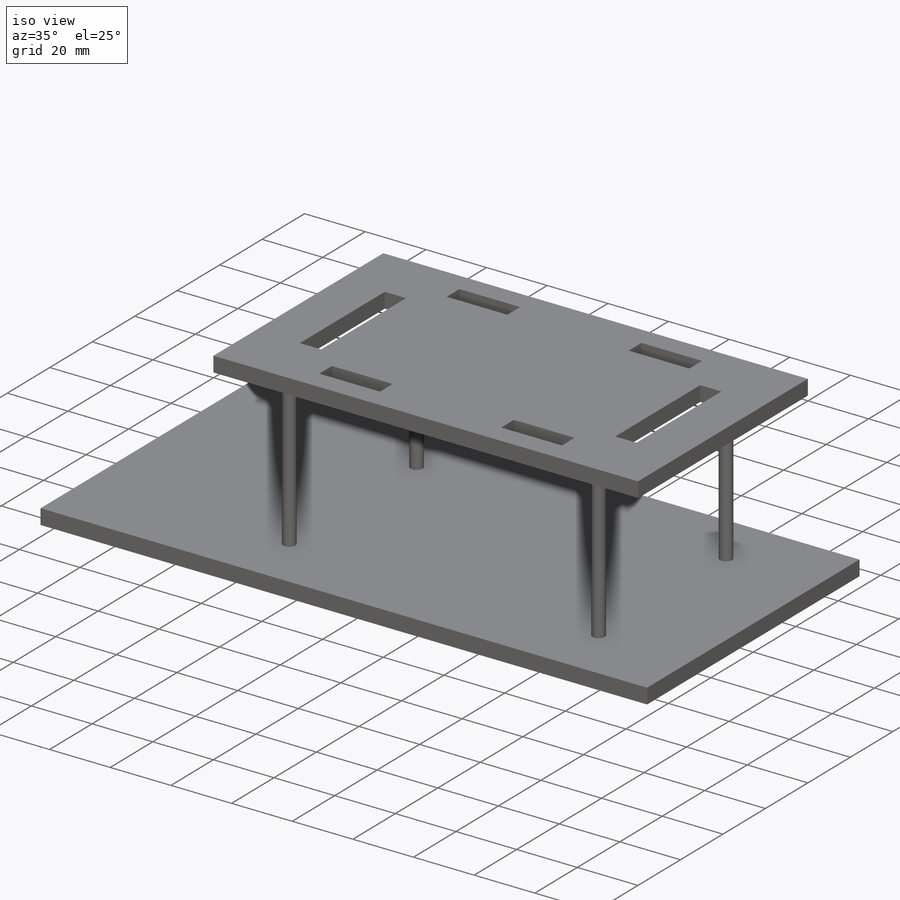
[diagram: iso view]
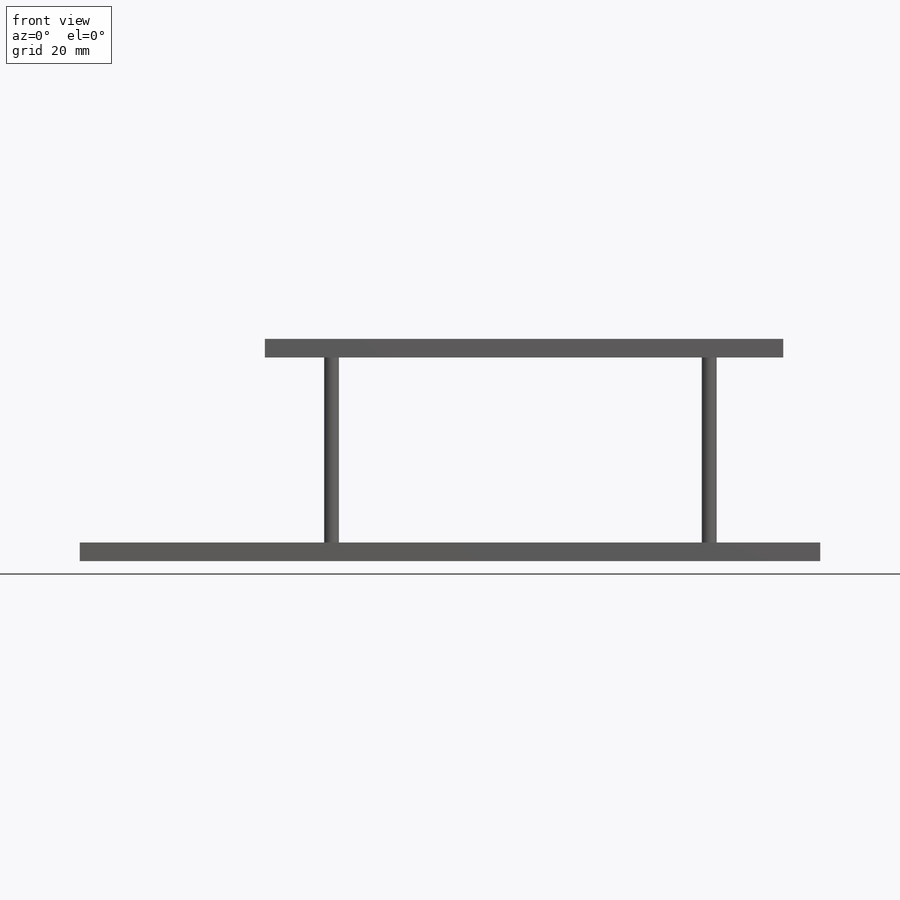
[diagram: front view]
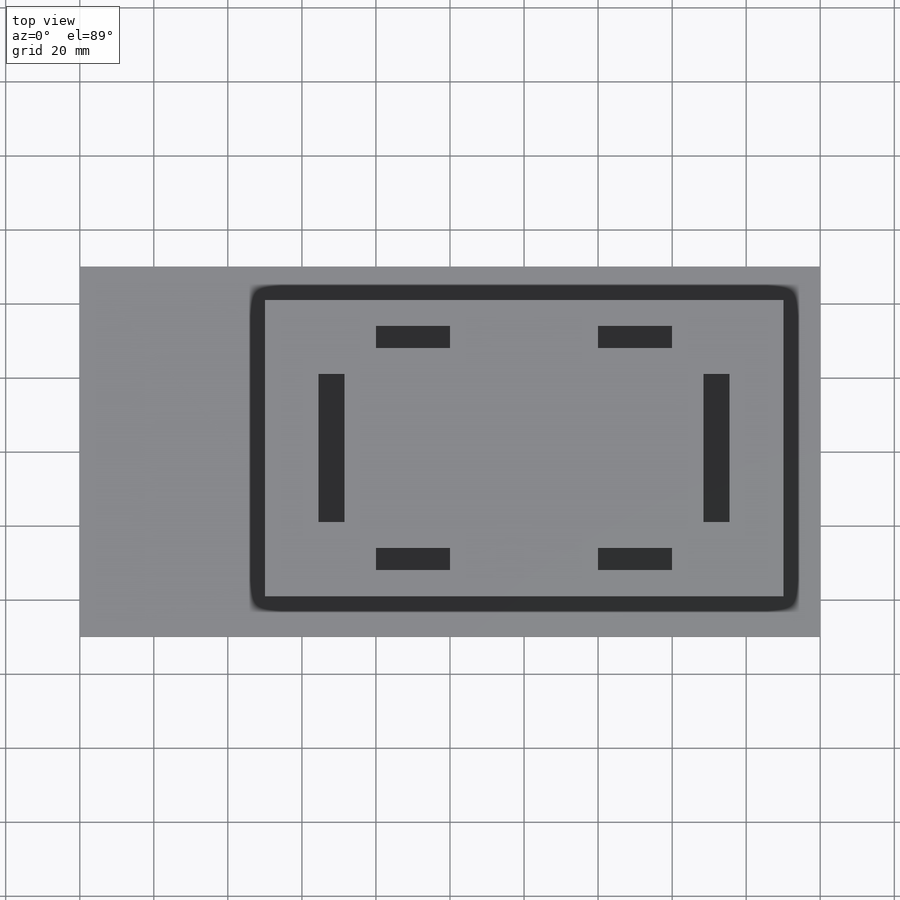
[diagram: top view]
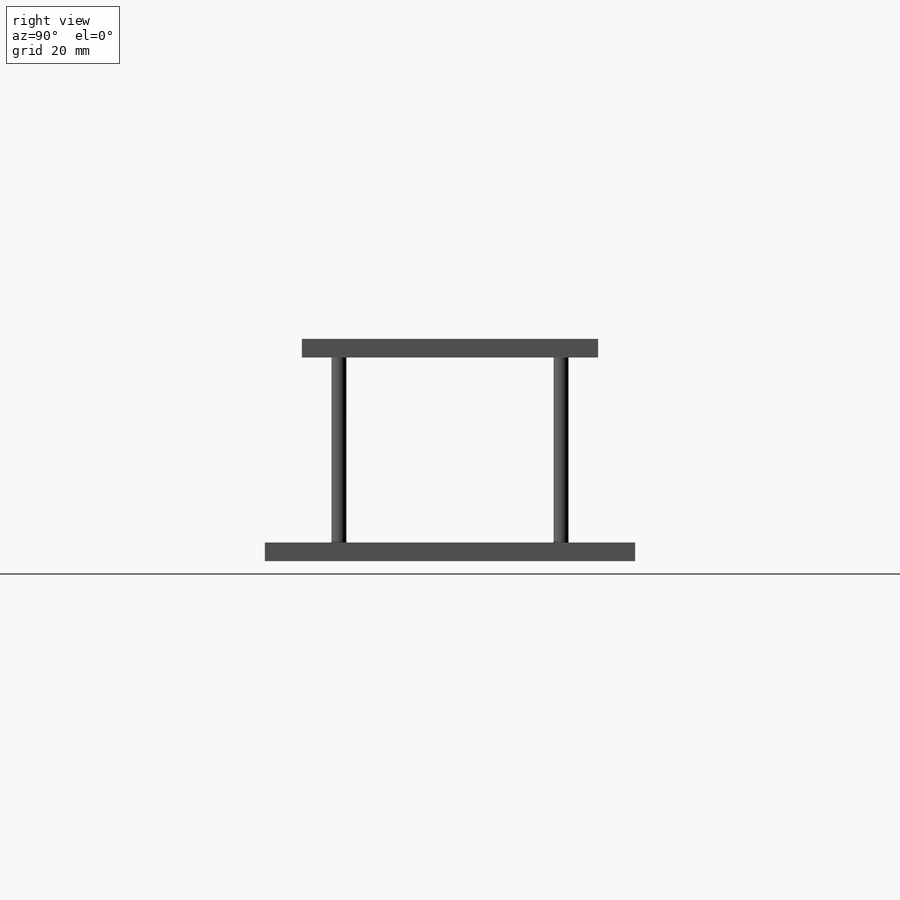
[diagram: right view]
SOLIDWORKS PART (.sldprt)
format: sldprt  version: not decoded by parser v0  size: 254,976 bytes
history: native  units: mm
features: sketch x5, extrude x3, cut_extrude x2, material x1 (+13 scaffold rows collapsed)
feature tree (24):
  scaffold x13  (default folders/planes/origin — collapsed)
  material  "Material <not specified>"
  sketch  "Sketch1"  dims[D1=200.0mm D2=100.0mm D3=100.0mm]
  extrude  "Boss-Extrude2"  Depth=5mm
  sketch  "Sketch2"  dims[D1=4.0mm D4=4.0mm D2=30.0mm D3=70.0mm D5=32.0mm D6=30.0mm]
  extrude  "Boss-Extrude3"  Depth=50mm
  sketch  "Sketch3"  dims[D1=40.0mm D2=40.0mm D3=10.0mm D4=50.0mm]
  extrude  "Boss-Extrude4"  Depth=5mm
  sketch  "Sketch4"  dims[D1=7.0mm D2=20.0mm D3=6.0mm D4=20.0mm]
  cut_extrude  "Cut-Extrude1"  Depth=5mm
  sketch  "Sketch7"  dims[D1=7.0mm D2=40.0mm D3=48.5mm]
  cut_extrude  "Cut-Extrude2"  Depth=5mm
decode coverage: 10 of 10 modeling features carry decoded parameters
note: suppression state not decoded; provenance and decode notes live in map.json
